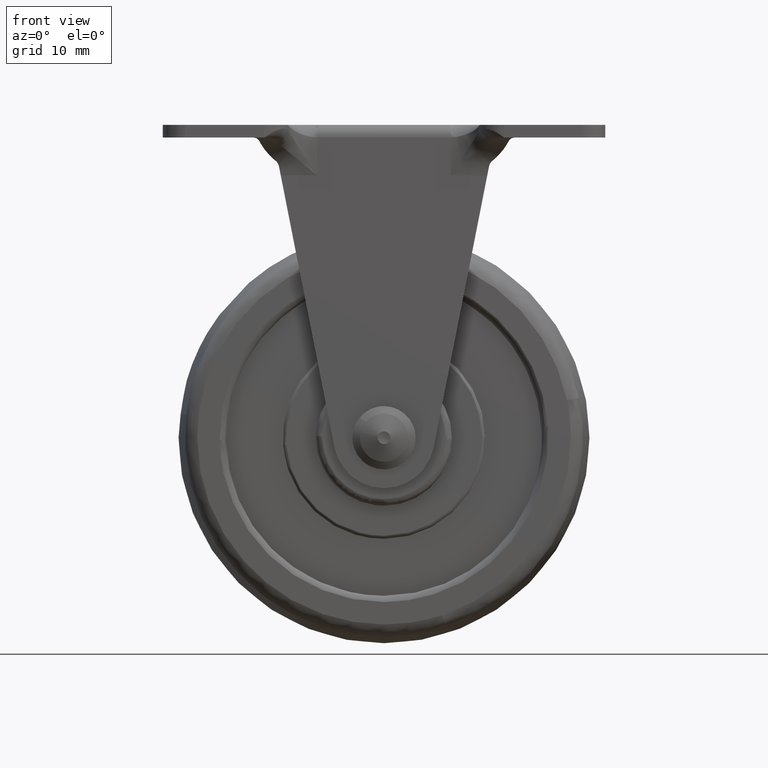
[diagram: clean part render]
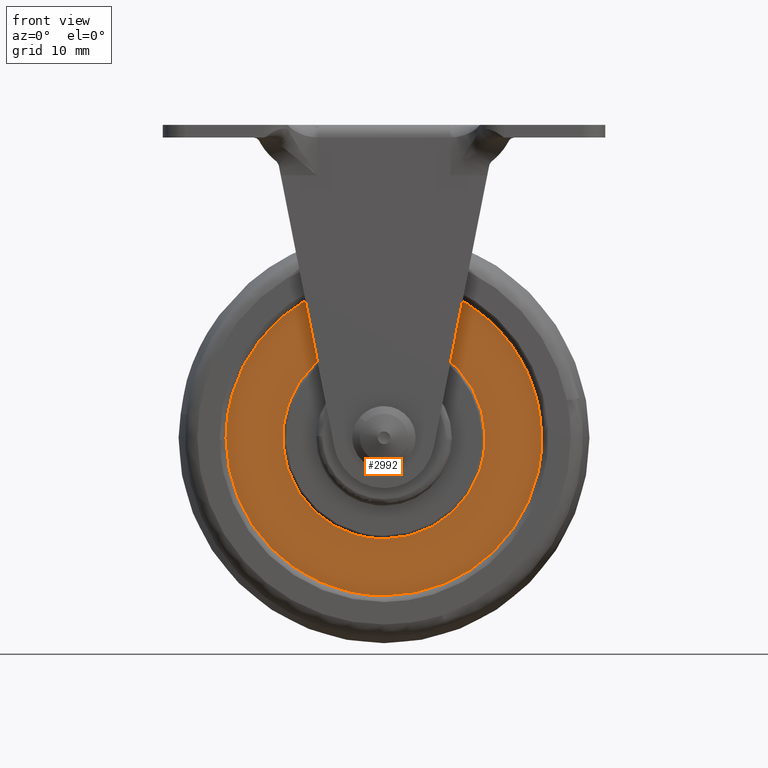
[diagram: same view with one face highlighted and labeled with its STEP entity id]
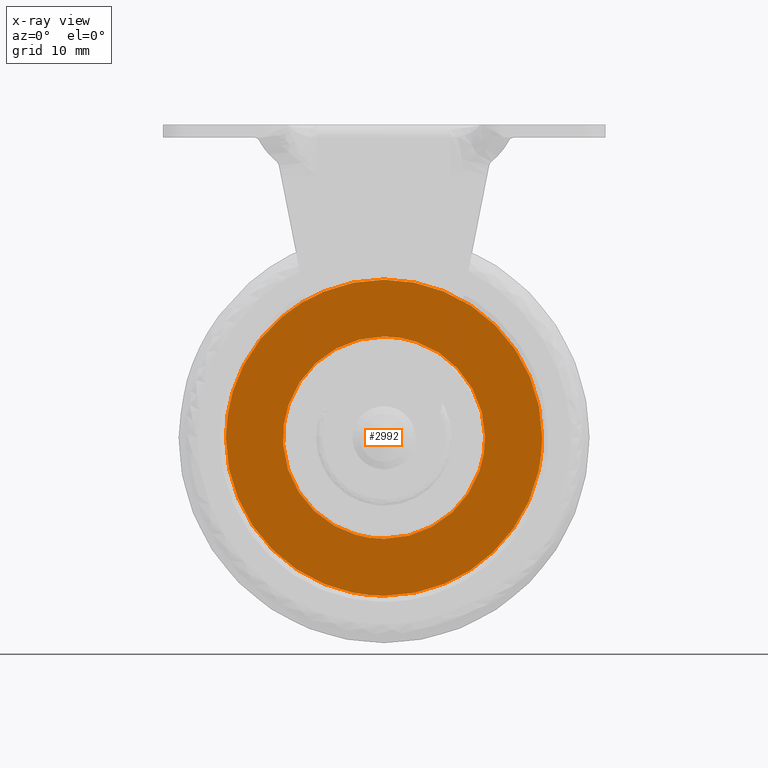
[diagram: x-ray of the same camera — body ghosted, the highlighted face saturated]
A machine part, front view. The second image highlights one B-rep face of the part: STEP entity #2992.
The next image is the same camera in x-ray: the body ghosted, the highlighted face saturated — about 0% of this face is hidden behind the body in this view.
In plain terms, the highlighted face is a freeform B-spline surface patch.
Its self-contained STEP definition (entity closure, byte-faithful):
#295=CARTESIAN_POINT('',(-16.143550705092469,-9.000000000000002,19.088890757491448));
#296=VERTEX_POINT('',#295);
#297=CARTESIAN_POINT('',(-24.999999999999950,-9.0,-0.000001645289983));
#298=VERTEX_POINT('',#297);
#299=CARTESIAN_POINT('',(-16.143550705092469,-9.000000000000002,19.088890757491448));
#300=CARTESIAN_POINT('',(-17.525844167126870,-8.999999999999975,17.920334509178129));
#301=CARTESIAN_POINT('',(-19.211284375253729,-9.000000000000064,16.147008939201640));
#302=CARTESIAN_POINT('',(-21.331783153977341,-8.999999999999949,13.140405349461361));
#303=CARTESIAN_POINT('',(-22.669796088561050,-9.000000000000041,10.704398277854040));
#304=CARTESIAN_POINT('',(-23.847322319887809,-8.999999999999933,7.697939846586324));
#305=CARTESIAN_POINT('',(-24.746509320136379,-8.999999999999911,4.242139614362835));
#306=CARTESIAN_POINT('',(-25.000177937346258,-9.000000000000119,1.583764202287047));
#307=CARTESIAN_POINT('',(-24.999999999999950,-9.0,-0.000001645289983));
#308=B_SPLINE_CURVE_WITH_KNOTS('',3,(#299,#300,#301,#302,#303,#304,#305,#306,#307),.UNSPECIFIED.,.F.,.U.,(4,1,1,1,1,1,4),(0.000000010307520,5.430021053285270,7.296593895129757,11.029720500896000,13.744731299391260,16.968816109772991,21.720083722011271),.UNSPECIFIED.);
#309=EDGE_CURVE('',#296,#298,#308,.T.);
#364=CARTESIAN_POINT('',(17.208864134513359,-9.000000000000007,-18.134358953707562));
#365=VERTEX_POINT('',#364);
#371=CARTESIAN_POINT('',(0.0,-9.0,-25.0));
#372=VERTEX_POINT('',#371);
#373=CARTESIAN_POINT('',(0.0,-9.0,-25.0));
#374=CARTESIAN_POINT('',(1.383997713313483,-9.000000000000032,-25.000110992670560));
#375=CARTESIAN_POINT('',(4.053099677582686,-8.999999999999965,-24.777792996016711));
#376=CARTESIAN_POINT('',(7.613715360543071,-9.000000000000014,-23.894409133003641));
#377=CARTESIAN_POINT('',(10.925040675769891,-9.000000000000007,-22.573353250827431));
#378=CARTESIAN_POINT('',(14.115890308428179,-9.000000000000020,-20.763135035201170));
#379=CARTESIAN_POINT('',(16.205019546972849,-8.999999999999973,-19.087116587228010));
#380=CARTESIAN_POINT('',(17.208864134513359,-9.000000000000007,-18.134358953707562));
#381=B_SPLINE_CURVE_WITH_KNOTS('',3,(#373,#374,#375,#376,#377,#378,#379,#380),.UNSPECIFIED.,.F.,.U.,(4,1,1,1,1,4),(0.000000010471357,4.151980651539635,8.007404149139154,10.973079178140130,14.828502675736610,18.980483316802989),.UNSPECIFIED.);
#382=EDGE_CURVE('',#372,#365,#381,.T.);
#384=CARTESIAN_POINT('',(-24.999999999999950,-9.0,-0.000001645289983));
#385=CARTESIAN_POINT('',(-25.000045048620319,-9.000000000000014,-1.227177470188432));
#386=CARTESIAN_POINT('',(-24.803901557480220,-8.999999999999993,-3.886079625356853));
#387=CARTESIAN_POINT('',(-23.973862929312741,-9.000000000000009,-7.381372139967292));
#388=CARTESIAN_POINT('',(-22.831606673539881,-9.000000000000004,-10.288930452603649));
#389=CARTESIAN_POINT('',(-21.613045516818481,-8.999999999999995,-12.655332108800859));
#390=CARTESIAN_POINT('',(-20.069609897798390,-9.000000000000021,-15.011981900004450));
#391=CARTESIAN_POINT('',(-18.182366076525820,-8.999999999999979,-17.240950134578679));
#392=CARTESIAN_POINT('',(-15.937974737701760,-8.999999999999879,-19.338738422734430));
#393=CARTESIAN_POINT('',(-13.456983521098531,-9.000000000000334,-21.155316620613551));
#394=CARTESIAN_POINT('',(-10.444355497613190,-8.999999999999744,-22.801429734245868));
#395=CARTESIAN_POINT('',(-7.567466437926592,-9.000000000000069,-23.890930034796039));
#396=CARTESIAN_POINT('',(-4.039399049589283,-8.999999999999954,-24.763165145703930));
#397=CARTESIAN_POINT('',(-1.636269155731835,-9.000000000000016,-25.000220347108709));
#398=CARTESIAN_POINT('',(0.0,-9.0,-25.0));
#399=B_SPLINE_CURVE_WITH_KNOTS('',3,(#384,#385,#386,#387,#388,#389,#390,#391,#392,#393,#394,#395,#396,#397,#398),.UNSPECIFIED.,.F.,.U.,(4,1,1,1,1,1,1,1,1,1,1,1,4),(0.000000040023409,3.681535194853723,7.976709792223584,10.737883520802811,13.038869768491759,15.953435455499120,19.174823014233901,21.782557878494199,25.157319166026870,28.378686190649379,32.060258654268509,34.361223768519743,39.269968845646012),.UNSPECIFIED.);
#400=EDGE_CURVE('',#298,#372,#399,.T.);
#423=CARTESIAN_POINT('',(0.0,-9.0,25.0));
#424=VERTEX_POINT('',#423);
#425=CARTESIAN_POINT('',(0.0,-9.0,25.0));
#426=CARTESIAN_POINT('',(-0.868350603032034,-9.000000000000002,25.000002444810850));
#427=CARTESIAN_POINT('',(-2.924980436298185,-8.999999999999972,24.892785288318169));
#428=CARTESIAN_POINT('',(-6.398879028611022,-9.000000000000028,24.276870061933050));
#429=CARTESIAN_POINT('',(-9.779033050765426,-8.999999999999979,23.101898752864379));
#430=CARTESIAN_POINT('',(-13.153742649853619,-9.000000000000021,21.357139197447911));
#431=CARTESIAN_POINT('',(-15.061826325519910,-8.999999999999995,20.003864358521941));
#432=CARTESIAN_POINT('',(-16.143550705092469,-9.000000000000002,19.088890757491448));
#433=B_SPLINE_CURVE_WITH_KNOTS('',3,(#425,#426,#427,#428,#429,#430,#431,#432),.UNSPECIFIED.,.F.,.U.,(4,1,1,1,1,4),(9.579296E-009,2.605059638267326,6.169885106942244,10.557353700880791,13.299525999024590,17.549889461670642),.UNSPECIFIED.);
#434=EDGE_CURVE('',#424,#296,#433,.T.);
#436=CARTESIAN_POINT('',(24.999999999999950,-9.000000000000002,0.000001645290487));
#437=VERTEX_POINT('',#436);
#438=CARTESIAN_POINT('',(24.999999999999950,-9.000000000000002,0.000001645290487));
#439=CARTESIAN_POINT('',(25.000071120512889,-8.999999999999998,1.227182676798026));
#440=CARTESIAN_POINT('',(24.833995791114120,-9.000000000000032,3.476997377119024));
#441=CARTESIAN_POINT('',(24.154966579134111,-8.999999999999941,6.684573763087795));
#442=CARTESIAN_POINT('',(23.288352535864000,-9.000000000000068,9.203587961161929));
#443=CARTESIAN_POINT('',(22.180336402658590,-8.999999999999996,11.622611240656040));
#444=CARTESIAN_POINT('',(20.710043257840990,-8.999999999999915,14.145515673750721));
#445=CARTESIAN_POINT('',(18.809528067225038,-9.000000000000036,16.565393757323360));
#446=CARTESIAN_POINT('',(16.485971995239041,-8.999999999999998,18.874740460151049));
#447=CARTESIAN_POINT('',(14.303332433658641,-9.000000000000002,20.578090270548369));
#448=CARTESIAN_POINT('',(11.673887477435960,-9.000000000000004,22.165062747890691));
#449=CARTESIAN_POINT('',(8.882765910304316,-9.000000000000007,23.453923397010890));
#450=CARTESIAN_POINT('',(4.908603201571686,-8.999999999999995,24.659534682334829));
#451=CARTESIAN_POINT('',(1.840808377303174,-9.000000000000012,25.000354890457821));
#452=CARTESIAN_POINT('',(0.0,-9.0,25.0));
#453=B_SPLINE_CURVE_WITH_KNOTS('',3,(#438,#439,#440,#441,#442,#443,#444,#445,#446,#447,#448,#449,#450,#451,#452),.UNSPECIFIED.,.F.,.U.,(4,1,1,1,1,1,1,1,1,1,1,1,4),(0.000000040018193,3.681535194849289,6.749524188435437,9.817492520216373,11.658279652381850,14.726244708776051,18.561229284831541,20.862142185922970,24.543729517167868,26.844694630737969,30.066072365255220,33.747634118593062,39.269968845645707),.UNSPECIFIED.);
#454=EDGE_CURVE('',#437,#424,#453,.T.);
#456=CARTESIAN_POINT('',(17.208864134513359,-9.000000000000007,-18.134358953707562));
#457=CARTESIAN_POINT('',(17.937089251231200,-9.000000000000014,-17.443335496763918));
#458=CARTESIAN_POINT('',(19.346258913569269,-8.999999999999996,-15.934715696524410));
#459=CARTESIAN_POINT('',(21.180782337714430,-9.000000000000016,-13.406512701305759));
#460=CARTESIAN_POINT('',(22.553650393782942,-8.999999999999991,-10.898769351726971));
#461=CARTESIAN_POINT('',(23.566626975841320,-9.000000000000025,-8.456013986949037));
#462=CARTESIAN_POINT('',(24.250100043695781,-8.999999999999925,-6.230787830714748));
#463=CARTESIAN_POINT('',(24.836280368044861,-9.000000000000114,-3.381548232580822));
#464=CARTESIAN_POINT('',(25.000091986068998,-8.999999999999901,-1.320932996164440));
#465=CARTESIAN_POINT('',(24.999999999999950,-9.000000000000002,0.000001645290487));
#466=B_SPLINE_CURVE_WITH_KNOTS('',3,(#456,#457,#458,#459,#460,#461,#462,#463,#464,#465),.UNSPECIFIED.,.F.,.U.,(4,1,1,1,1,1,1,4),(0.000000011249039,3.011716321603636,6.181954444357984,9.352186273088785,11.571339394362230,14.107533551067590,16.326698430819501,20.289487984173469),.UNSPECIFIED.);
#467=EDGE_CURVE('',#365,#437,#466,.T.);
#1841=CARTESIAN_POINT('',(15.998736707260059,-9.000000000355604,0.201056638212794));
#1842=VERTEX_POINT('',#1841);
#1853=CARTESIAN_POINT('',(0.0,-9.0,16.0));
#1854=VERTEX_POINT('',#1853);
#1855=CARTESIAN_POINT('',(15.998736707260059,-9.000000000355604,0.201056638212794));
#1856=CARTESIAN_POINT('',(15.984279476659930,-9.000000000329312,1.369661957105582));
#1857=CARTESIAN_POINT('',(15.769074647818581,-9.000000000289896,3.120002442918376));
#1858=CARTESIAN_POINT('',(15.079986310892130,-9.000000000237273,5.459005746782613));
#1859=CARTESIAN_POINT('',(14.208165822187629,-9.000000000191513,7.491972559430718));
#1860=CARTESIAN_POINT('',(13.018747003543030,-9.000000000148507,9.400344946975633));
#1861=CARTESIAN_POINT('',(11.588436221136460,-9.000000000110545,11.086629555532070));
#1862=CARTESIAN_POINT('',(10.254173857738120,-9.000000000082649,12.326336617097530));
#1863=CARTESIAN_POINT('',(8.685224087730541,-9.000000000056803,13.484967847070600));
#1864=CARTESIAN_POINT('',(7.013611841884001,-9.000000000035241,14.429546791292379));
#1865=CARTESIAN_POINT('',(5.296833582968731,-9.000000000019689,15.128209836222860));
#1866=CARTESIAN_POINT('',(3.018954048436523,-9.000000000004722,15.790805290041019));
#1867=CARTESIAN_POINT('',(1.266096396975160,-8.999999999999949,16.000327413109630));
#1868=CARTESIAN_POINT('',(0.0,-9.0,16.0));
#1869=B_SPLINE_CURVE_WITH_KNOTS('',3,(#1855,#1856,#1857,#1858,#1859,#1860,#1861,#1862,#1863,#1864,#1865,#1866,#1867,#1868),.UNSPECIFIED.,.F.,.U.,(4,1,1,1,1,1,1,1,1,1,1,4),(0.000000053747460,3.506020460227482,5.259032119116441,7.304214601313124,10.128518949101331,11.978930748568390,13.926673703668190,15.582318914647461,17.822282271245331,19.672689456001340,21.133537360287249,24.931717786104969),.UNSPECIFIED.);
#1870=EDGE_CURVE('',#1842,#1854,#1869,.T.);
#1872=CARTESIAN_POINT('',(-15.961050781441690,-9.000000000346276,-1.115732025281916));
#1873=VERTEX_POINT('',#1872);
#1874=CARTESIAN_POINT('',(0.0,-9.0,16.0));
#1875=CARTESIAN_POINT('',(-0.820280991860377,-8.999999999987631,16.000016347504211));
#1876=CARTESIAN_POINT('',(-2.700135104427242,-8.999999999964242,15.855243073970140));
#1877=CARTESIAN_POINT('',(-5.360387699364657,-8.999999999947731,15.167085008350529));
#1878=CARTESIAN_POINT('',(-7.539483996948921,-8.999999999949388,14.160773588397870));
#1879=CARTESIAN_POINT('',(-9.223325279064195,-8.999999999959934,13.110806959226460));
#1880=CARTESIAN_POINT('',(-10.653375396816040,-8.999999999976797,11.993424898236640));
#1881=CARTESIAN_POINT('',(-12.029818453213281,-9.000000000003595,10.609070478203639));
#1882=CARTESIAN_POINT('',(-13.458733012788070,-9.000000000044668,8.771131360832879));
#1883=CARTESIAN_POINT('',(-14.625732509620599,-9.000000000099846,6.669859361600332));
#1884=CARTESIAN_POINT('',(-15.472097569861051,-9.000000000168432,4.279734786942743));
#1885=CARTESIAN_POINT('',(-15.981053668080420,-9.000000000247418,1.760841002807140));
#1886=CARTESIAN_POINT('',(-16.035088757941871,-9.000000000308859,-0.058769985359146));
#1887=CARTESIAN_POINT('',(-15.961050781441690,-9.000000000346276,-1.115732025281916));
#1888=B_SPLINE_CURVE_WITH_KNOTS('',3,(#1874,#1875,#1876,#1877,#1878,#1879,#1880,#1881,#1882,#1883,#1884,#1885,#1886,#1887),.UNSPECIFIED.,.F.,.U.,(4,1,1,1,1,1,1,1,1,1,1,4),(0.000000060144373,2.460858055115118,5.639519286048369,8.202955379561988,9.638478518436656,11.586664602427620,13.637364934808881,15.483046723167330,18.559156230153810,20.814980405662741,23.070801613808289,26.249424406278241),.UNSPECIFIED.);
#1889=EDGE_CURVE('',#1854,#1873,#1888,.T.);
#1945=CARTESIAN_POINT('',(0.0,-9.0,-16.0));
#1946=VERTEX_POINT('',#1945);
#1947=CARTESIAN_POINT('',(-15.961050781441690,-9.000000000346276,-1.115732025281916));
#1948=CARTESIAN_POINT('',(-15.902205756421161,-9.000000000326685,-1.957990833256594));
#1949=CARTESIAN_POINT('',(-15.618281118251749,-9.000000000282645,-3.850342226742528));
#1950=CARTESIAN_POINT('',(-14.768461932610650,-9.000000000224553,-6.349628299203158));
#1951=CARTESIAN_POINT('',(-13.637038056503370,-9.000000000175660,-8.445800309559274));
#1952=CARTESIAN_POINT('',(-12.493773800040611,-9.000000000138382,-10.053967326503180));
#1953=CARTESIAN_POINT('',(-10.959690486608091,-9.000000000098938,-11.750275725386500));
#1954=CARTESIAN_POINT('',(-8.903015658966812,-9.000000000060357,-13.404002104214779));
#1955=CARTESIAN_POINT('',(-6.800750591015840,-9.000000000034230,-14.532041631371580));
#1956=CARTESIAN_POINT('',(-4.901682500374160,-9.000000000017156,-15.260832448562130));
#1957=CARTESIAN_POINT('',(-2.814330691726323,-9.000000000004118,-15.824766305758461));
#1958=CARTESIAN_POINT('',(-1.063220934781253,-8.999999999999970,-16.000159552765449));
#1959=CARTESIAN_POINT('',(0.0,-9.0,-16.0));
#1960=B_SPLINE_CURVE_WITH_KNOTS('',3,(#1947,#1948,#1949,#1950,#1951,#1952,#1953,#1954,#1955,#1956,#1957,#1958,#1959),.UNSPECIFIED.,.F.,.U.,(4,1,1,1,1,1,1,1,1,1,4),(0.000000049419686,2.532947624102427,5.722595248176784,7.880306225183588,9.662750252429937,11.632849129675099,14.728627438127910,17.543037162201450,18.762611259145530,20.826510062154430,24.016137370043818),.UNSPECIFIED.);
#1961=EDGE_CURVE('',#1873,#1946,#1960,.T.);
#1963=CARTESIAN_POINT('',(0.0,-9.0,-16.0));
#1964=CARTESIAN_POINT('',(1.121561462532130,-8.999999999982151,-16.000177474819960));
#1965=CARTESIAN_POINT('',(2.869773225702099,-8.999999999961240,-15.815385831738690));
#1966=CARTESIAN_POINT('',(5.481903668434266,-8.999999999946846,-15.095138214305869));
#1967=CARTESIAN_POINT('',(7.540598948193466,-8.999999999948363,-14.182000725700350));
#1968=CARTESIAN_POINT('',(9.433840213566844,-8.999999999964141,-12.971002227328171));
#1969=CARTESIAN_POINT('',(11.141885497164930,-8.999999999989564,-11.562435331760071));
#1970=CARTESIAN_POINT('',(12.608637851378250,-9.000000000027306,-9.942541590422925));
#1971=CARTESIAN_POINT('',(13.804394489638140,-9.000000000076138,-8.158336198155411));
#1972=CARTESIAN_POINT('',(14.697684843498580,-9.000000000125800,-6.425831899381871));
#1973=CARTESIAN_POINT('',(15.450821701804710,-9.000000000192562,-4.377739745449402));
#1974=CARTESIAN_POINT('',(15.919881960151800,-9.000000000268919,-2.109182915849145));
#1975=CARTESIAN_POINT('',(16.007880189072711,-9.000000000329010,-0.524592066815665));
#1976=CARTESIAN_POINT('',(15.998736707260059,-9.000000000355604,0.201056638212794));
#1977=B_SPLINE_CURVE_WITH_KNOTS('',3,(#1963,#1964,#1965,#1966,#1967,#1968,#1969,#1970,#1971,#1972,#1973,#1974,#1975,#1976),.UNSPECIFIED.,.F.,.U.,(4,1,1,1,1,1,1,1,1,1,1,4),(0.000000056124268,3.364639597502872,5.244896966113231,8.114747316054313,10.093976537044449,11.974233014584010,14.745065920240570,16.625326431031080,18.406617635068670,20.583752206234610,23.156721771989581,25.333843538409390),.UNSPECIFIED.);
#1978=EDGE_CURVE('',#1946,#1842,#1977,.T.);
#2973=CARTESIAN_POINT('',(-27.497499903090240,-9.0,-27.497499903090301));
#2974=CARTESIAN_POINT('',(-27.497499903090240,-9.0,27.497501244194812));
#2975=CARTESIAN_POINT('',(27.497501244194741,-9.0,-27.497499903090301));
#2976=CARTESIAN_POINT('',(27.497501244194741,-9.0,27.497501244194812));
#2977=B_SPLINE_SURFACE_WITH_KNOTS('',1,1,((#2973,#2975),(#2974,#2976)),.UNSPECIFIED.,.F.,.F.,.U.,(2,2),(2,2),(0.0,54.995001147285109),(0.0,54.995001147284988),.UNSPECIFIED.);
#2978=ORIENTED_EDGE('',*,*,#382,.T.);
#2979=ORIENTED_EDGE('',*,*,#467,.T.);
#2980=ORIENTED_EDGE('',*,*,#454,.T.);
#2981=ORIENTED_EDGE('',*,*,#434,.T.);
#2982=ORIENTED_EDGE('',*,*,#309,.T.);
#2983=ORIENTED_EDGE('',*,*,#400,.T.);
#2984=EDGE_LOOP('',(#2978,#2979,#2980,#2981,#2982,#2983));
#2985=FACE_OUTER_BOUND('',#2984,.T.);
#2986=ORIENTED_EDGE('',*,*,#1978,.F.);
#2987=ORIENTED_EDGE('',*,*,#1961,.F.);
#2988=ORIENTED_EDGE('',*,*,#1889,.F.);
#2989=ORIENTED_EDGE('',*,*,#1870,.F.);
#2990=EDGE_LOOP('',(#2986,#2987,#2988,#2989));
#2991=FACE_BOUND('',#2990,.T.);
#2992=ADVANCED_FACE('',(#2985,#2991),#2977,.F.);